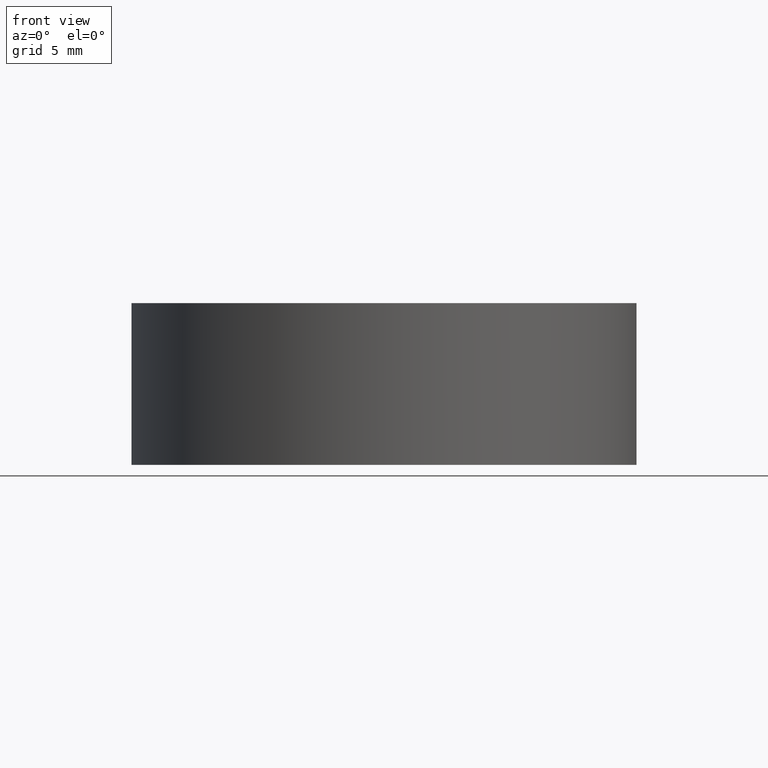
[diagram: clean part render]
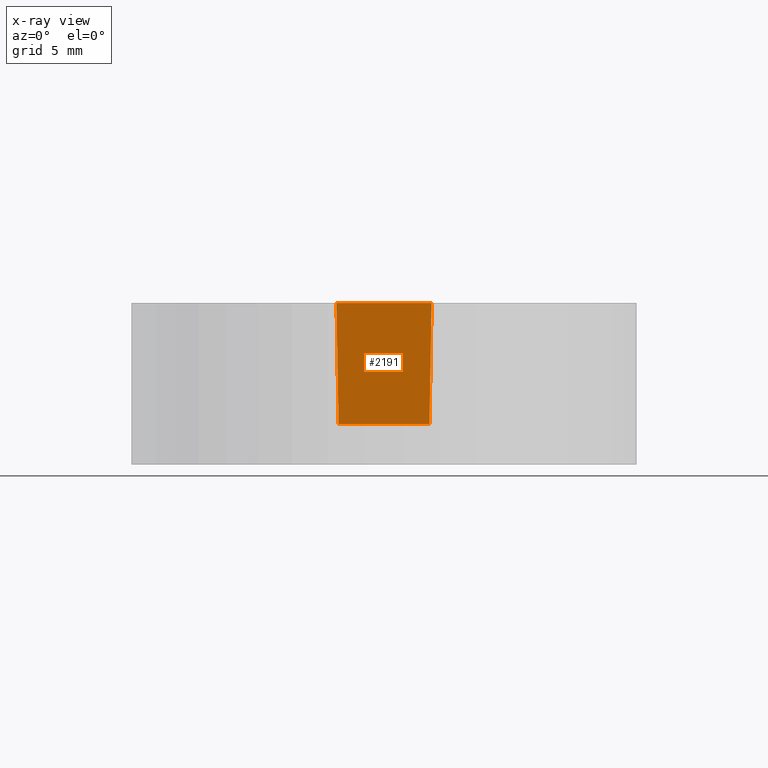
[diagram: x-ray — body ghosted, one internal face saturated and labeled with its STEP entity id]
A machine part, front view, then the same camera in x-ray: the body is ghosted and one INTERNAL B-rep face — a face not visible from any outside direction — is saturated and labeled: STEP entity #2191.
In plain terms, the highlighted planar face has unit normal (0, 0.9998, 0.0175).
Its self-contained STEP definition (entity closure, byte-faithful):
#316 = CARTESIAN_POINT ( 'NONE',  ( -2.249999999999996900, -11.09999999999999800, 2.000000000000007100 ) ) ;
#333 = DIRECTION ( 'NONE',  ( 0.01744974916068272500, -0.01744974916068272100, 0.9996954598818874600 ) ) ;
#334 = VECTOR ( 'NONE', #333, 1000.000000000000200 ) ;
#335 = CARTESIAN_POINT ( 'NONE',  ( 2.248629778144029400, -11.09862977814402600, 1.921500042445943900 ) ) ;
#336 = LINE ( 'NONE', #335, #334 ) ;
#383 = DIRECTION ( 'NONE',  ( 1.000000000000000000, 4.731287430827687700E-030, -4.746415829343455000E-029 ) ) ;
#384 = VECTOR ( 'NONE', #383, 1000.000000000000000 ) ;
#385 = CARTESIAN_POINT ( 'NONE',  ( -2.249999999999999600, -11.09999999999999800, 2.000000000000007100 ) ) ;
#386 = LINE ( 'NONE', #385, #384 ) ;
#620 = DIRECTION ( 'NONE',  ( -0.01744974916068270400, -0.01744974916068272800, 0.9996954598818874600 ) ) ;
#621 = VECTOR ( 'NONE', #620, 1000.000000000000200 ) ;
#622 = CARTESIAN_POINT ( 'NONE',  ( -2.243240238843887900, -11.09324023884388700, 1.612733542733320000 ) ) ;
#623 = LINE ( 'NONE', #622, #621 ) ;
#885 = CARTESIAN_POINT ( 'NONE',  ( -2.354730389569303900, -11.20473038956930300, 8.000000000000001800 ) ) ;
#886 = DIRECTION ( 'NONE',  ( 1.000000000000000000, 4.731287430827687700E-030, -4.746415829343455000E-029 ) ) ;
#887 = VECTOR ( 'NONE', #886, 1000.000000000000000 ) ;
#888 = CARTESIAN_POINT ( 'NONE',  ( -3.328006943901143600E-028, -11.20473038956930300, 8.000000000000001800 ) ) ;
#889 = LINE ( 'NONE', #888, #887 ) ;
#890 = CARTESIAN_POINT ( 'NONE',  ( 2.354730389569301700, -11.20473038956930300, 8.000000000000001800 ) ) ;
#965 = FACE_OUTER_BOUND ( 'NONE', #1950, .T. ) ;
#995 = DIRECTION ( 'NONE',  ( -4.430866171592459800E-029, -0.01745240643728354600, 0.9998476951563911600 ) ) ;
#996 = DIRECTION ( 'NONE',  ( 3.151253393097677600E-030, 0.9998476951563912700, 0.01745240643728355000 ) ) ;
#997 = CARTESIAN_POINT ( 'NONE',  ( -2.249999999999999600, -11.09999999999999800, 2.000000000000007100 ) ) ;
#998 = AXIS2_PLACEMENT_3D ( 'NONE', #997, #996, #995 ) ;
#1000 = PLANE ( 'NONE',  #998 ) ;
#1739 = VERTEX_POINT ( 'NONE', #9611 ) ;
#1931 = VERTEX_POINT ( 'NONE', #316 ) ;
#1933 = ORIENTED_EDGE ( 'NONE', *, *, #2149, .T. ) ;
#1947 = EDGE_CURVE ( 'NONE', #1739, #2148, #336, .T. ) ;
#1950 = EDGE_LOOP ( 'NONE', ( #1933, #1951, #2073, #2059 ) ) ;
#1951 = ORIENTED_EDGE ( 'NONE', *, *, #1947, .F. ) ;
#1952 = EDGE_CURVE ( 'NONE', #1931, #1739, #386, .T. ) ;
#2059 = ORIENTED_EDGE ( 'NONE', *, *, #2060, .T. ) ;
#2060 = EDGE_CURVE ( 'NONE', #1931, #2150, #623, .T. ) ;
#2073 = ORIENTED_EDGE ( 'NONE', *, *, #1952, .F. ) ;
#2148 = VERTEX_POINT ( 'NONE', #890 ) ;
#2149 = EDGE_CURVE ( 'NONE', #2150, #2148, #889, .T. ) ;
#2150 = VERTEX_POINT ( 'NONE', #885 ) ;
#2191 = ADVANCED_FACE ( 'NONE', ( #965 ), #1000, .T. ) ;
#9611 = CARTESIAN_POINT ( 'NONE',  ( 2.249999999999997800, -11.09999999999999800, 2.000000000000000000 ) ) ;